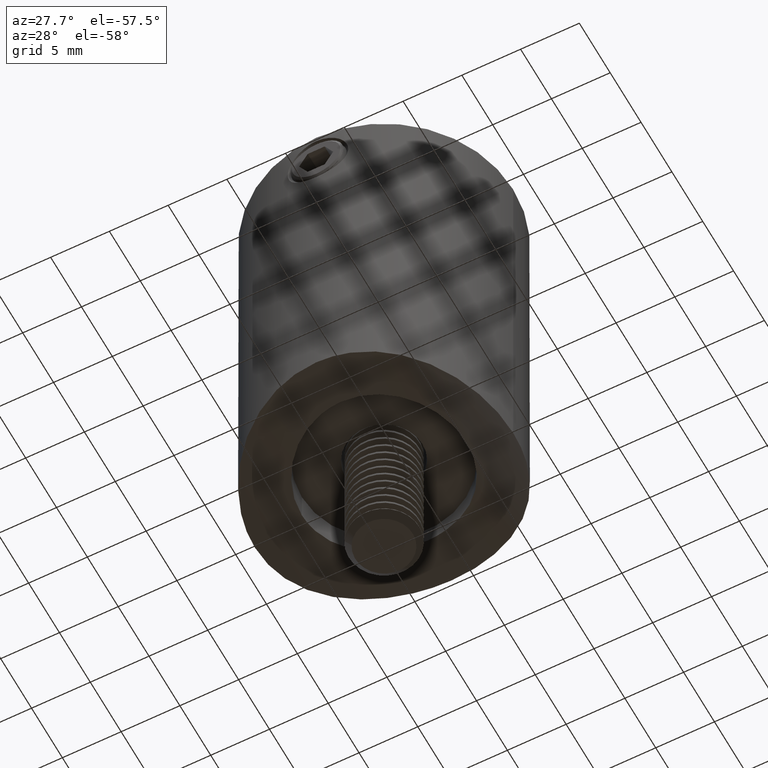
[diagram: clean part render]
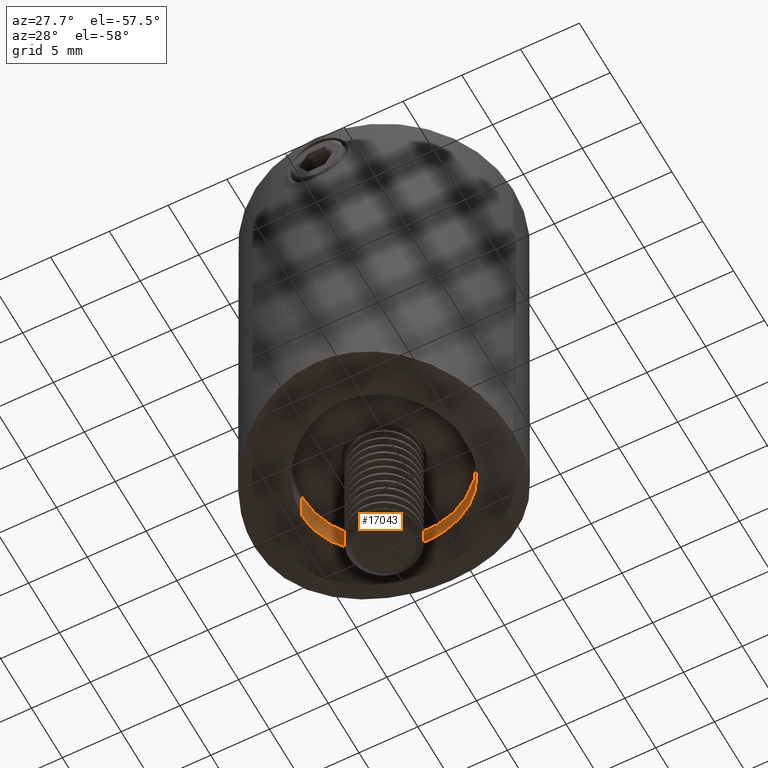
[diagram: same view with one face highlighted and labeled with its STEP entity id]
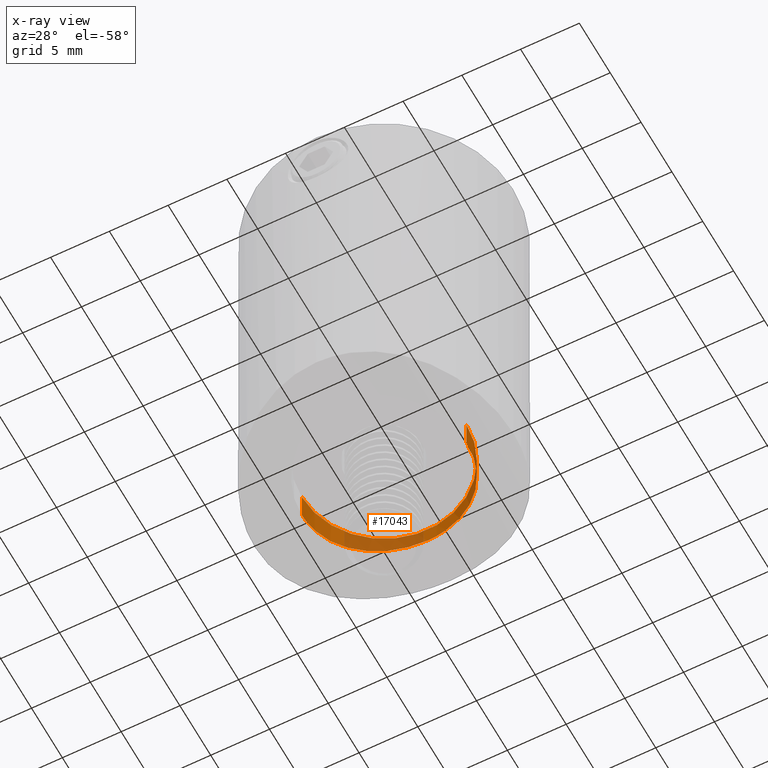
[diagram: x-ray of the same camera — body ghosted, the highlighted face saturated]
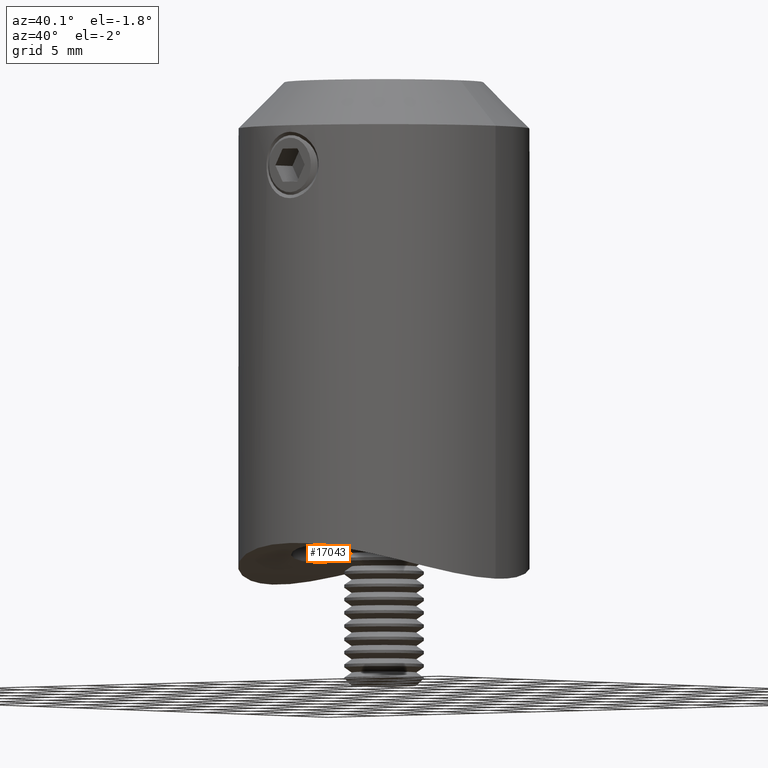
[diagram: same view with one face highlighted and labeled with its STEP entity id]
A machine part, auxiliary view. The second image highlights one B-rep face of the part: STEP entity #17043.
The next image is the same camera in x-ray: the body ghosted, the highlighted face saturated — about 39% of this face is hidden behind the body in this view.
A second angle (auxiliary view) of the same face is appended — the face is thin or edge-on in the first view.
In plain terms, the highlighted cylindrical surface (partial cylindrical patch) has radius 7 mm, axis along (-0, -0, -1).
Its self-contained STEP definition (entity closure, byte-faithful):
#484 = EDGE_CURVE ( 'NONE', #6166, #13829, #1797, .T. ) ;
#633 = EDGE_LOOP ( 'NONE', ( #8515, #15909, #2976, #2176, #14207 ) ) ;
#992 = VERTEX_POINT ( 'NONE', #4202 ) ;
#1108 = DIRECTION ( 'NONE',  ( -1.000000000000000000, 0.000000000000000000, 0.000000000000000000 ) ) ;
#1145 = CARTESIAN_POINT ( 'NONE',  ( 4.265524629670673917, 5.554952589915192362, -0.3790078089507405990 ) ) ;
#1176 = CARTESIAN_POINT ( 'NONE',  ( 0.000000000000000000, 0.000000000000000000, 1.500000000000000000 ) ) ;
#1346 = CARTESIAN_POINT ( 'NONE',  ( -5.109071099222929568, 4.790497962259892439, -0.5460432938183825691 ) ) ;
#1564 = CARTESIAN_POINT ( 'NONE',  ( -6.637445531906433160, 2.270028454574318566, -0.9293183016262859253 ) ) ;
#1708 = CARTESIAN_POINT ( 'NONE',  ( -6.954101510358179361, 0.9226907353931070865, -1.022704474354030335 ) ) ;
#1797 = CIRCLE ( 'NONE', #9465, 6.999999999999999112 ) ;
#1813 = CARTESIAN_POINT ( 'NONE',  ( 6.999999999999999112, 8.572527594031472204E-16, 1.500000000000000000 ) ) ;
#2176 = ORIENTED_EDGE ( 'NONE', *, *, #9341, .F. ) ;
#2713 = CARTESIAN_POINT ( 'NONE',  ( 0.4639917850282010425, 6.988418589069731013, -0.003364319568192828454 ) ) ;
#2785 = CARTESIAN_POINT ( 'NONE',  ( 5.273939555143151381, 4.625377652126399397, -0.5805949280456721429 ) ) ;
#2866 = CARTESIAN_POINT ( 'NONE',  ( 1.823131392703747577, 6.773879930131978533, -0.06472370926777944178 ) ) ;
#2976 = ORIENTED_EDGE ( 'NONE', *, *, #4794, .T. ) ;
#2990 = CARTESIAN_POINT ( 'NONE',  ( -5.552181228180388395, 4.269133564131956327, -0.6464267239315120150 ) ) ;
#3064 = VECTOR ( 'NONE', #15658, 1000.000000000000000 ) ;
#4202 = CARTESIAN_POINT ( 'NONE',  ( 3.680148672329805919E-15, 7.000000000000067502, 1.770936762062842997E-14 ) ) ;
#4416 = CARTESIAN_POINT ( 'NONE',  ( 3.516678556831699165, 6.069537413911053392, -0.2543573165221499899 ) ) ;
#4487 = CARTESIAN_POINT ( 'NONE',  ( 6.639518741644287125, 2.263932399749664981, -0.9299145684759709818 ) ) ;
#4542 = CARTESIAN_POINT ( 'NONE',  ( -1.593322643214578171, 6.820125722937336654, -0.05156100253153984847 ) ) ;
#4647 = VERTEX_POINT ( 'NONE', #15590 ) ;
#4685 = CARTESIAN_POINT ( 'NONE',  ( -3.510858352122395054, 6.073351806332088820, -0.2534205656146228391 ) ) ;
#4700 = CARTESIAN_POINT ( 'NONE',  ( 4.618672273225403302, 5.264984812425533178, -0.4450925640746091760 ) ) ;
#4744 = B_SPLINE_CURVE_WITH_KNOTS ( 'NONE', 3,
 ( #8078, #13054, #6207, #9544, #4487, #16481, #11241, #16627, #2785, #21491, #4700, #1145, #9674, #4416, #11452, #14677, #2866, #6357, #12908, #2713, #6285, #14827 ),
 .UNSPECIFIED., .F., .F.,
 ( 4, 2, 2, 2, 2, 2, 2, 2, 2, 2, 4 ),
 ( 0.02200355935407610070, 0.02337850036022855529, 0.02475344136638100989, 0.02612838237253346449, 0.02750332337868591909, 0.02819079388176214812, 0.02887826438483837369, 0.03025320539099082828, 0.03162814639714328635, 0.03231561690021950844, 0.03300308740329573748 ),
 .UNSPECIFIED. ) ;
#4794 = EDGE_CURVE ( 'NONE', #6166, #5178, #11028, .T. ) ;
#4795 = DIRECTION ( 'NONE',  ( -1.000000000000000000, 0.000000000000000000, 0.000000000000000000 ) ) ;
#5120 = EDGE_CURVE ( 'NONE', #13829, #4647, #11813, .T. ) ;
#5178 = VERTEX_POINT ( 'NONE', #17061 ) ;
#5270 = CYLINDRICAL_SURFACE ( 'NONE', #10893, 6.999999999999999112 ) ;
#5684 = CARTESIAN_POINT ( 'NONE',  ( -6.999999999999999112, 0.000000000000000000, 0.000000000000000000 ) ) ;
#6166 = VERTEX_POINT ( 'NONE', #20639 ) ;
#6207 = CARTESIAN_POINT ( 'NONE',  ( 6.955087653870668518, 0.9173555102752090074, -1.022997821997726708 ) ) ;
#6285 = CARTESIAN_POINT ( 'NONE',  ( 0.2307080215220535802, 7.000000000000007105, 1.599727600008153175E-15 ) ) ;
#6357 = CARTESIAN_POINT ( 'NONE',  ( 1.150321352048560453, 6.908623244377119832, -0.02636591833615305538 ) ) ;
#8064 = CARTESIAN_POINT ( 'NONE',  ( -0.9173186487991900062, 6.954832433982318207, -0.01320685888614204356 ) ) ;
#8078 = CARTESIAN_POINT ( 'NONE',  ( 6.999999999999999112, 8.571029639589835744E-16, -1.036746226461318532 ) ) ;
#8136 = CARTESIAN_POINT ( 'NONE',  ( -5.689948346086528552, 4.083711561046131422, -0.6795049316477412837 ) ) ;
#8281 = DIRECTION ( 'NONE',  ( -0.000000000000000000, -0.000000000000000000, -1.000000000000000000 ) ) ;
#8515 = ORIENTED_EDGE ( 'NONE', *, *, #5120, .F. ) ;
#9167 = VECTOR ( 'NONE', #8281, 1000.000000000000000 ) ;
#9341 = EDGE_CURVE ( 'NONE', #992, #5178, #20409, .T. ) ;
#9465 = AXIS2_PLACEMENT_3D ( 'NONE', #1176, #11346, #1108 ) ;
#9544 = CARTESIAN_POINT ( 'NONE',  ( 6.773439528523085507, 1.826281018544896106, -0.9691460259164090818 ) ) ;
#9674 = CARTESIAN_POINT ( 'NONE',  ( 4.082845157666043612, 5.690514347689445529, -0.3468606639658740054 ) ) ;
#9700 = CARTESIAN_POINT ( 'NONE',  ( 0.000000000000000000, 0.000000000000000000, 0.000000000000000000 ) ) ;
#9739 = CARTESIAN_POINT ( 'NONE',  ( -4.627657120841871752, 5.271688767866160141, -0.4452576831393037504 ) ) ;
#9812 = CARTESIAN_POINT ( 'NONE',  ( -4.275667193334140137, 5.561510458858367478, -0.3783508126927824233 ) ) ;
#10893 = AXIS2_PLACEMENT_3D ( 'NONE', #9700, #21732, #4795 ) ;
#11028 = LINE ( 'NONE', #5684, #3064 ) ;
#11241 = CARTESIAN_POINT ( 'NONE',  ( 6.069474090823274715, 3.517010499271148838, -0.7736799968874007449 ) ) ;
#11346 = DIRECTION ( 'NONE',  ( -0.000000000000000000, -0.000000000000000000, -1.000000000000000000 ) ) ;
#11374 = CARTESIAN_POINT ( 'NONE',  ( -2.476113800283981536, 6.551412767818889371, -0.1263370242519153419 ) ) ;
#11452 = CARTESIAN_POINT ( 'NONE',  ( 3.115226970459618716, 6.285643345808191285, -0.1979113906136866219 ) ) ;
#11663 = CARTESIAN_POINT ( 'NONE',  ( -0.4613509333304134374, 7.000000000000007994, 1.834108675121304699E-15 ) ) ;
#11737 = CARTESIAN_POINT ( 'NONE',  ( 6.999999999999999112, 8.572527594031472204E-16, 0.000000000000000000 ) ) ;
#11813 = LINE ( 'NONE', #11737, #9167 ) ;
#12908 = CARTESIAN_POINT ( 'NONE',  ( 0.9233804821397483265, 6.942668884357974690, -0.01656527666897836606 ) ) ;
#13054 = CARTESIAN_POINT ( 'NONE',  ( 6.999999999999998224, 0.4583175958780743575, -1.036746226461319642 ) ) ;
#13115 = CARTESIAN_POINT ( 'NONE',  ( 3.680148672329805919E-15, 7.000000000000067502, 1.770936762062842997E-14 ) ) ;
#13183 = CARTESIAN_POINT ( 'NONE',  ( -5.261928776091652438, 4.622155702082666906, -0.5797480138752424406 ) ) ;
#13262 = CARTESIAN_POINT ( 'NONE',  ( -6.286094645607350095, 3.113474984654344802, -0.8317505838735992363 ) ) ;
#13829 = VERTEX_POINT ( 'NONE', #1813 ) ;
#14207 = ORIENTED_EDGE ( 'NONE', *, *, #19294, .F. ) ;
#14677 = CARTESIAN_POINT ( 'NONE',  ( 2.261061765673798796, 6.640899866734168988, -0.1022394489386875688 ) ) ;
#14814 = CARTESIAN_POINT ( 'NONE',  ( -3.108715435025682261, 6.288440471947040145, -0.1971613865667777299 ) ) ;
#14827 = CARTESIAN_POINT ( 'NONE',  ( 3.680148672329805919E-15, 7.000000000000067502, 1.770936762062842997E-14 ) ) ;
#15253 = CARTESIAN_POINT ( 'NONE',  ( -6.999999999999999112, 1.070744768089586012E-16, -1.036746226461319198 ) ) ;
#15590 = CARTESIAN_POINT ( 'NONE',  ( 6.999999999999999112, 8.571029639589835744E-16, -1.036746226461318532 ) ) ;
#15658 = DIRECTION ( 'NONE',  ( -0.000000000000000000, -0.000000000000000000, -1.000000000000000000 ) ) ;
#15909 = ORIENTED_EDGE ( 'NONE', *, *, #484, .F. ) ;
#16468 = CARTESIAN_POINT ( 'NONE',  ( -1.818448642388771130, 6.763622039010674492, -0.06753944587610202777 ) ) ;
#16481 = CARTESIAN_POINT ( 'NONE',  ( 6.289052291621588964, 3.107478126154915365, -0.8325516438618556503 ) ) ;
#16627 = CARTESIAN_POINT ( 'NONE',  ( 5.561975626810833795, 4.274611762244703073, -0.6477601119838050092 ) ) ;
#17043 = ADVANCED_FACE ( 'NONE', ( #18871 ), #5270, .F. ) ;
#17061 = CARTESIAN_POINT ( 'NONE',  ( -6.999999999999999112, 1.070744768089586012E-16, -1.036746226461319198 ) ) ;
#18871 = FACE_OUTER_BOUND ( 'NONE', #633, .T. ) ;
#19294 = EDGE_CURVE ( 'NONE', #4647, #992, #4744, .T. ) ;
#19898 = CARTESIAN_POINT ( 'NONE',  ( -2.260313885638344011, 6.629051190780396396, -0.1049871502565094400 ) ) ;
#20409 = B_SPLINE_CURVE_WITH_KNOTS ( 'NONE', 3,
 ( #13115, #11663, #8064, #4542, #16468, #19898, #11374, #14814, #4685, #9812, #9739, #1346, #13183, #2990, #8136, #21772, #13262, #1564, #20478, #1708, #22056, #15253 ),
 .UNSPECIFIED., .F., .F.,
 ( 4, 2, 2, 2, 2, 2, 2, 2, 2, 2, 4 ),
 ( 0.03300308740329573748, 0.03437783439362109700, 0.03506520788878378370, 0.03575258138394646346, 0.03712732837427182297, 0.03850207536459718943, 0.03918944885975987613, 0.03987682235492255589, 0.04125156934524792235, 0.04262631633557328881, 0.04400106332589865527 ),
 .UNSPECIFIED. ) ;
#20478 = CARTESIAN_POINT ( 'NONE',  ( -6.773955593116734342, 1.823296912745889786, -0.9693000155428326270 ) ) ;
#20639 = CARTESIAN_POINT ( 'NONE',  ( -6.999999999999999112, 0.000000000000000000, 1.500000000000000000 ) ) ;
#21491 = CARTESIAN_POINT ( 'NONE',  ( 4.789690031832091854, 5.109893209548682869, -0.4791620792955303409 ) ) ;
#21732 = DIRECTION ( 'NONE',  ( -0.000000000000000000, -0.000000000000000000, -1.000000000000000000 ) ) ;
#21772 = CARTESIAN_POINT ( 'NONE',  ( -6.071265348980682930, 3.514055526323556222, -0.7741397847910445051 ) ) ;
#22056 = CARTESIAN_POINT ( 'NONE',  ( -7.000000000000000888, 0.4650551710484486234, -1.036746226461320086 ) ) ;